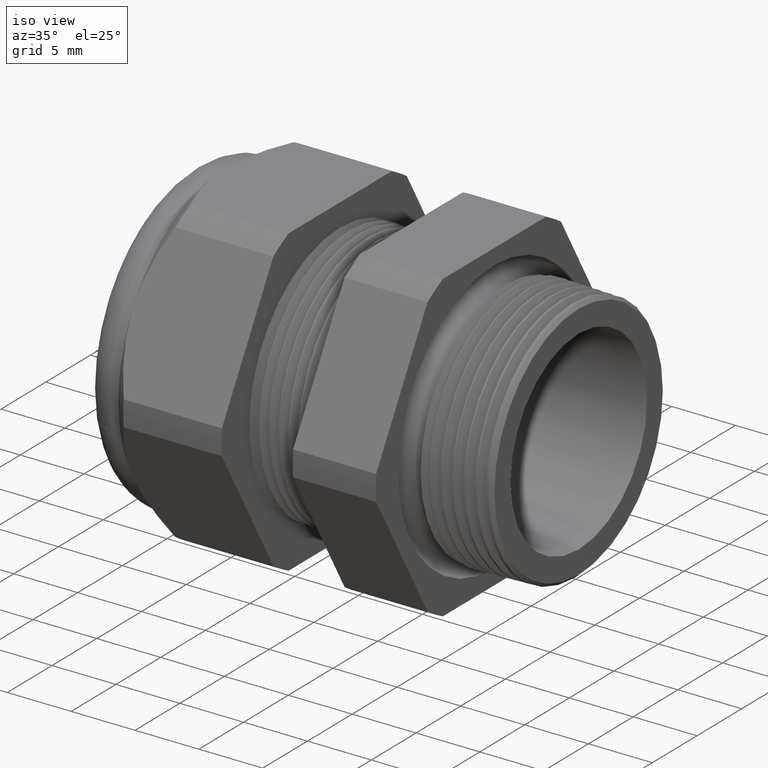
[diagram: clean part render]
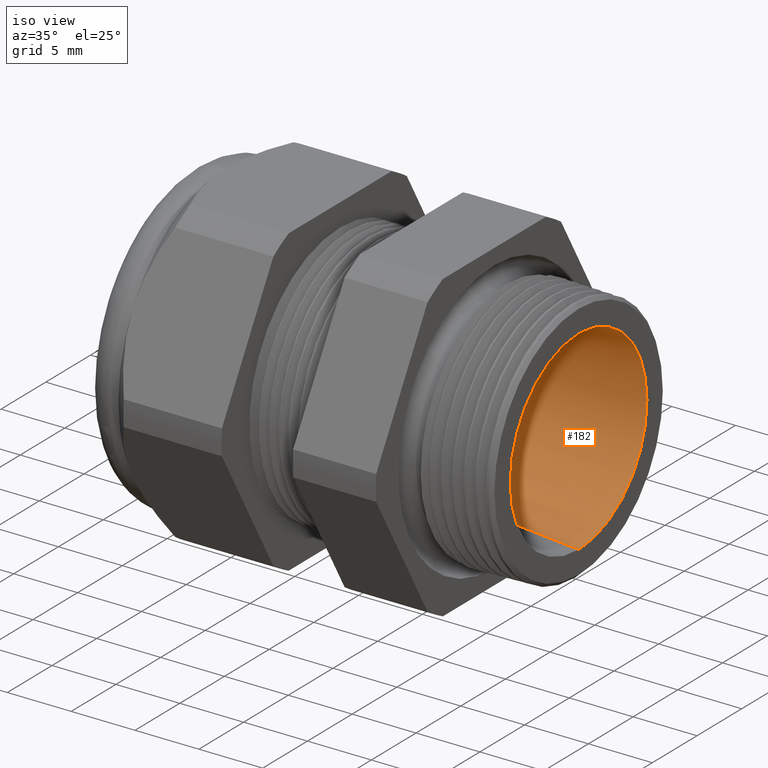
[diagram: same view with one face highlighted and labeled with its STEP entity id]
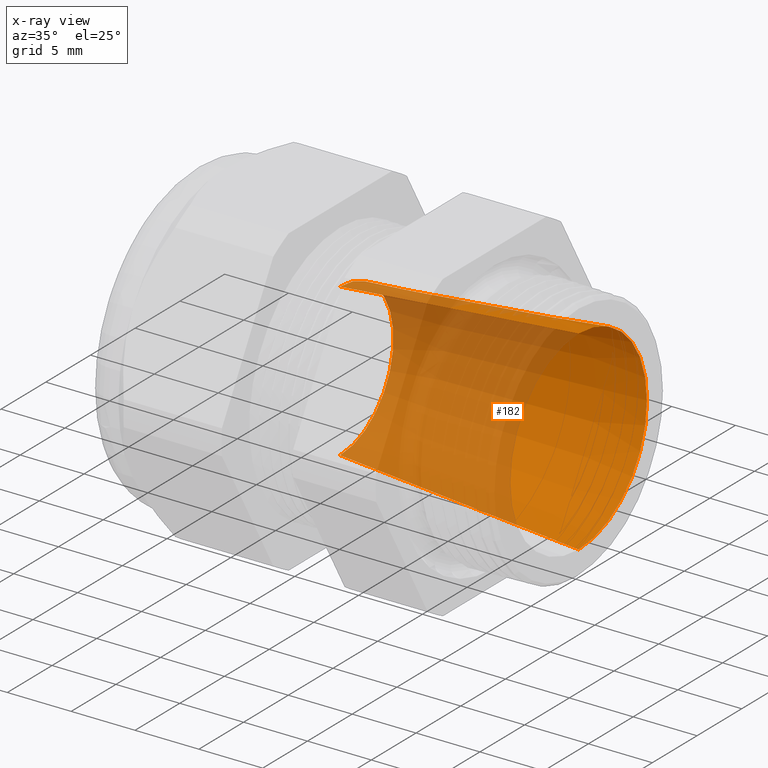
[diagram: x-ray of the same camera — body ghosted, the highlighted face saturated]
A machine part, iso view. The second image highlights one B-rep face of the part: STEP entity #182.
The next image is the same camera in x-ray: the body ghosted, the highlighted face saturated — about 56% of this face is hidden behind the body in this view.
In plain terms, the highlighted conical surface has half-angle 5.108 deg.
Its self-contained STEP definition (entity closure, byte-faithful):
#155 = ORIENTED_EDGE ( 'NONE', *, *, #181, .T. ) ;
#159 = EDGE_LOOP ( 'NONE', ( #183, #179, #161, #155 ) ) ;
#161 = ORIENTED_EDGE ( 'NONE', *, *, #266, .T. ) ;
#162 = EDGE_CURVE ( 'NONE', #243, #230, #1421, .T. ) ;
#179 = ORIENTED_EDGE ( 'NONE', *, *, #162, .F. ) ;
#181 = EDGE_CURVE ( 'NONE', #267, #227, #1453, .T. ) ;
#182 = ADVANCED_FACE ( 'NONE', ( #1448 ), #1447, .F. ) ;
#183 = ORIENTED_EDGE ( 'NONE', *, *, #233, .F. ) ;
#227 = VERTEX_POINT ( 'NONE', #1492 ) ;
#230 = VERTEX_POINT ( 'NONE', #1490 ) ;
#233 = EDGE_CURVE ( 'NONE', #230, #227, #1489, .T. ) ;
#243 = VERTEX_POINT ( 'NONE', #1525 ) ;
#266 = EDGE_CURVE ( 'NONE', #243, #267, #1552, .T. ) ;
#267 = VERTEX_POINT ( 'NONE', #1606 ) ;
#1362 = CARTESIAN_POINT ( 'NONE',  ( -0.7854330708661414500, 0.0000000000000000000, 0.0000000000000000000 ) ) ;
#1418 = DIRECTION ( 'NONE',  ( 0.0000000000000000000, 0.0000000000000000000, -1.000000000000000000 ) ) ;
#1419 = DIRECTION ( 'NONE',  ( 1.000000000000000000, 0.0000000000000000000, 0.0000000000000000000 ) ) ;
#1420 = AXIS2_PLACEMENT_3D ( 'NONE', #1362, #1419, #1418 ) ;
#1421 = CIRCLE ( 'NONE', #1420, 0.2349999999999999600 ) ;
#1443 = DIRECTION ( 'NONE',  ( 0.0000000000000000000, 0.0000000000000000000, -1.000000000000000000 ) ) ;
#1444 = DIRECTION ( 'NONE',  ( 1.000000000000000000, 0.0000000000000000000, 0.0000000000000000000 ) ) ;
#1445 = CARTESIAN_POINT ( 'NONE',  ( -0.7854330708661414500, 0.0000000000000000000, 0.0000000000000000000 ) ) ;
#1446 = AXIS2_PLACEMENT_3D ( 'NONE', #1445, #1444, #1443 ) ;
#1447 = CONICAL_SURFACE ( 'NONE', #1446, 0.2349999999999999600, 0.08915526176478623400 ) ;
#1448 = FACE_OUTER_BOUND ( 'NONE', #159, .T. ) ;
#1449 = DIRECTION ( 'NONE',  ( 0.0000000000000000000, 0.0000000000000000000, -1.000000000000000000 ) ) ;
#1450 = DIRECTION ( 'NONE',  ( 1.000000000000000000, 0.0000000000000000000, 0.0000000000000000000 ) ) ;
#1451 = CARTESIAN_POINT ( 'NONE',  ( -0.04999999999999998200, 0.0000000000000000000, 0.0000000000000000000 ) ) ;
#1452 = AXIS2_PLACEMENT_3D ( 'NONE', #1451, #1450, #1449 ) ;
#1453 = CIRCLE ( 'NONE', #1452, 0.3007420072869181300 ) ;
#1487 = VECTOR ( 'NONE', #1548, 39.37007874015748900 ) ;
#1488 = CARTESIAN_POINT ( 'NONE',  ( -0.7854330708661414500, 2.877919977996279200E-017, 0.2349999999999999600 ) ) ;
#1489 = LINE ( 'NONE', #1488, #1487 ) ;
#1490 = CARTESIAN_POINT ( 'NONE',  ( -0.7854330708661414500, 2.877919977996279200E-017, 0.2349999999999999600 ) ) ;
#1492 = CARTESIAN_POINT ( 'NONE',  ( -0.04999999999999998200, 3.683027365930742200E-017, 0.3007420072869181300 ) ) ;
#1525 = CARTESIAN_POINT ( 'NONE',  ( -0.7854330708661414500, 0.0000000000000000000, -0.2349999999999999600 ) ) ;
#1548 = DIRECTION ( 'NONE',  ( 0.9960283015027057200, 1.090391193840671700E-017, 0.08903719787614228200 ) ) ;
#1552 = LINE ( 'NONE', #1609, #1608 ) ;
#1606 = CARTESIAN_POINT ( 'NONE',  ( -0.04999999999999998200, 0.0000000000000000000, -0.3007420072869181300 ) ) ;
#1607 = DIRECTION ( 'NONE',  ( 0.9960283015027057200, 0.0000000000000000000, -0.08903719787614228200 ) ) ;
#1608 = VECTOR ( 'NONE', #1607, 39.37007874015748900 ) ;
#1609 = CARTESIAN_POINT ( 'NONE',  ( -0.7854330708661414500, 0.0000000000000000000, -0.2349999999999999600 ) ) ;